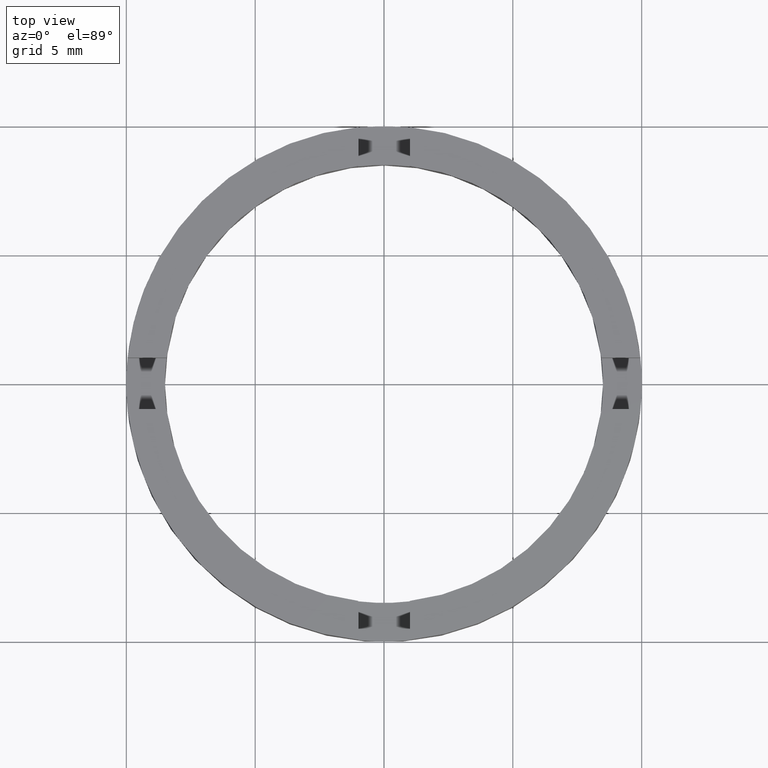
[diagram: clean part render]
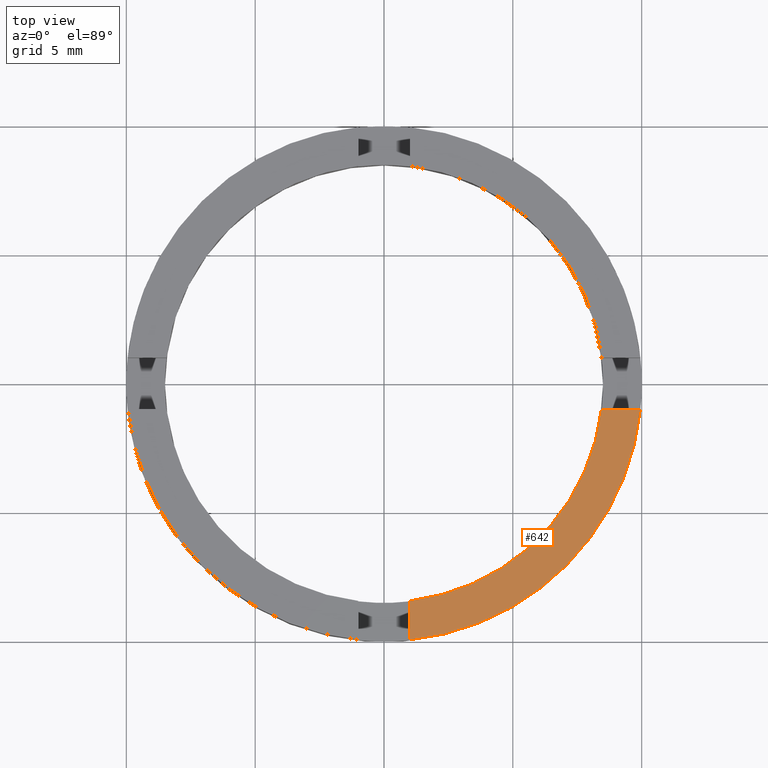
[diagram: same view with one face highlighted and labeled with its STEP entity id]
A machine part, top view. The second image highlights one B-rep face of the part: STEP entity #642.
In plain terms, the highlighted planar face has unit normal (0, 0, 1).
Its self-contained STEP definition (entity closure, byte-faithful):
#1 = CIRCLE ( 'NONE', #529, 8.500000000000000000 ) ;
#102 = VECTOR ( 'NONE', #256, 1000.000000000000000 ) ;
#120 = CARTESIAN_POINT ( 'NONE',  ( 0.000000000000000000, 0.000000000000000000, 2.500000000000000000 ) ) ;
#167 = VERTEX_POINT ( 'NONE', #514 ) ;
#202 = ORIENTED_EDGE ( 'NONE', *, *, #628, .F. ) ;
#235 = AXIS2_PLACEMENT_3D ( 'NONE', #396, #462, #752 ) ;
#246 = ORIENTED_EDGE ( 'NONE', *, *, #255, .F. ) ;
#255 = EDGE_CURVE ( 'NONE', #167, #436, #621, .T. ) ;
#256 = DIRECTION ( 'NONE',  ( 0.000000000000000000, 1.000000000000000000, -0.000000000000000000 ) ) ;
#272 = CIRCLE ( 'NONE', #300, 10.00000000000000000 ) ;
#280 = VECTOR ( 'NONE', #602, 1000.000000000000000 ) ;
#300 = AXIS2_PLACEMENT_3D ( 'NONE', #577, #654, #724 ) ;
#304 = CARTESIAN_POINT ( 'NONE',  ( 9.949874371066195877, -1.000000000000038192, 2.500000000000000000 ) ) ;
#327 = VERTEX_POINT ( 'NONE', #415 ) ;
#396 = CARTESIAN_POINT ( 'NONE',  ( 0.000000000000000000, 0.000000000000000000, 2.500000000000000000 ) ) ;
#399 = VERTEX_POINT ( 'NONE', #304 ) ;
#405 = CARTESIAN_POINT ( 'NONE',  ( 1.000000000000001332, -8.440971508067066864, 2.500000000000000000 ) ) ;
#415 = CARTESIAN_POINT ( 'NONE',  ( 8.440971508067063311, -1.000000000000032641, 2.500000000000000000 ) ) ;
#436 = VERTEX_POINT ( 'NONE', #405 ) ;
#452 = CARTESIAN_POINT ( 'NONE',  ( 1.000000000000001332, 0.000000000000000000, 2.500000000000000000 ) ) ;
#462 = DIRECTION ( 'NONE',  ( 0.000000000000000000, 0.000000000000000000, 1.000000000000000000 ) ) ;
#511 = EDGE_CURVE ( 'NONE', #327, #399, #531, .T. ) ;
#512 = FACE_OUTER_BOUND ( 'NONE', #601, .T. ) ;
#514 = CARTESIAN_POINT ( 'NONE',  ( 1.000000000000001332, -9.949874371066199430, 2.500000000000000000 ) ) ;
#529 = AXIS2_PLACEMENT_3D ( 'NONE', #120, #656, #548 ) ;
#531 = LINE ( 'NONE', #586, #280 ) ;
#548 = DIRECTION ( 'NONE',  ( 1.000000000000000000, 0.000000000000000000, 0.000000000000000000 ) ) ;
#577 = CARTESIAN_POINT ( 'NONE',  ( 0.000000000000000000, 0.000000000000000000, 2.500000000000000000 ) ) ;
#586 = CARTESIAN_POINT ( 'NONE',  ( -3.729655473350139197E-15, -1.000000000000001110, 2.500000000000000000 ) ) ;
#597 = EDGE_CURVE ( 'NONE', #167, #399, #272, .T. ) ;
#601 = EDGE_LOOP ( 'NONE', ( #676, #202, #246, #661 ) ) ;
#602 = DIRECTION ( 'NONE',  ( 1.000000000000000000, -3.729655473350134464E-15, 0.000000000000000000 ) ) ;
#621 = LINE ( 'NONE', #452, #102 ) ;
#628 = EDGE_CURVE ( 'NONE', #436, #327, #1, .T. ) ;
#642 = ADVANCED_FACE ( 'NONE', ( #512 ), #707, .T. ) ;
#654 = DIRECTION ( 'NONE',  ( 0.000000000000000000, 0.000000000000000000, 1.000000000000000000 ) ) ;
#656 = DIRECTION ( 'NONE',  ( 0.000000000000000000, 0.000000000000000000, 1.000000000000000000 ) ) ;
#661 = ORIENTED_EDGE ( 'NONE', *, *, #597, .T. ) ;
#676 = ORIENTED_EDGE ( 'NONE', *, *, #511, .F. ) ;
#707 = PLANE ( 'NONE',  #235 ) ;
#724 = DIRECTION ( 'NONE',  ( 1.000000000000000000, 0.000000000000000000, 0.000000000000000000 ) ) ;
#752 = DIRECTION ( 'NONE',  ( 1.000000000000000000, 0.000000000000000000, -0.000000000000000000 ) ) ;